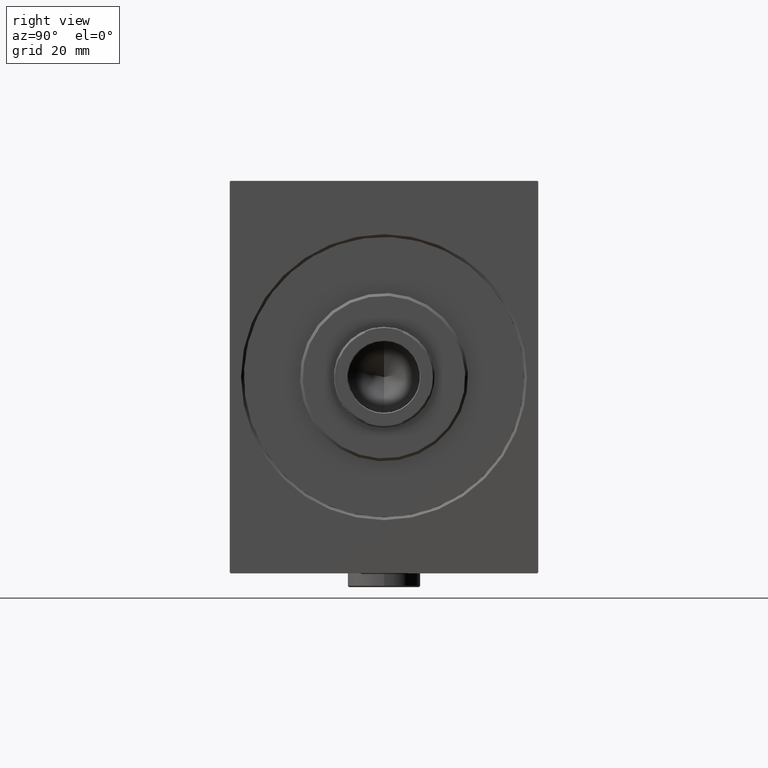
[diagram: clean part render]
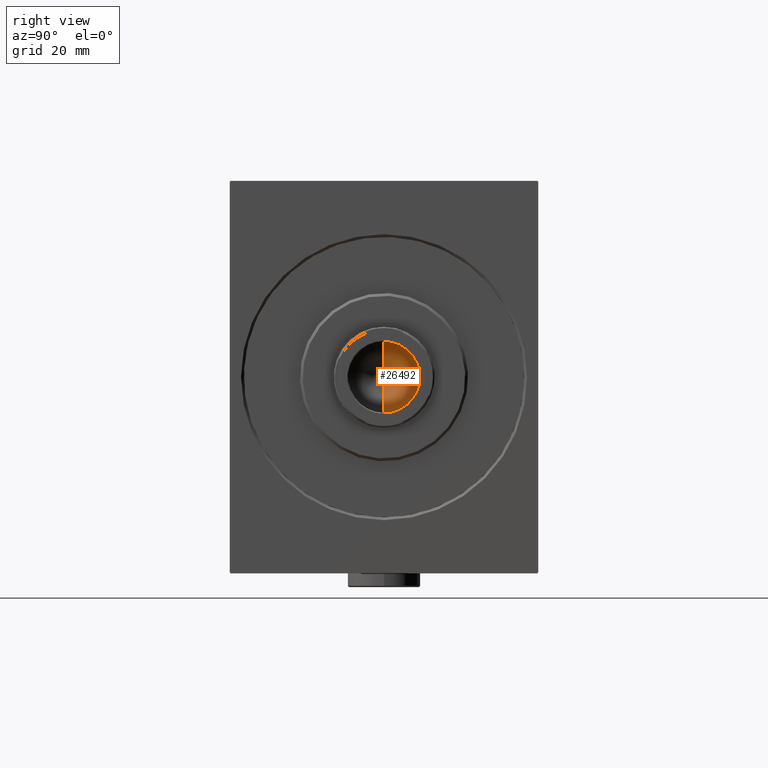
[diagram: same view with one face highlighted and labeled with its STEP entity id]
A machine part, right view. The second image highlights one B-rep face of the part: STEP entity #26492.
In plain terms, the highlighted conical surface has half-angle 59 deg.
Its self-contained STEP definition (entity closure, byte-faithful):
#934 = VERTEX_POINT ( 'NONE', #34615 ) ;
#1056 = VERTEX_POINT ( 'NONE', #21323 ) ;
#1144 = CONICAL_SURFACE ( 'NONE', #7580, 12.74999999999999112, 1.029744258676653645 ) ;
#2474 = DIRECTION ( 'NONE',  ( 0.8571673007021118895, 0.000000000000000000, 0.5150380749100549327 ) ) ;
#2558 = EDGE_CURVE ( 'NONE', #934, #38697, #22457, .T. ) ;
#6828 = CARTESIAN_POINT ( 'NONE',  ( 0.000000000000000000, 0.000000000000000000, 134.0000000000000000 ) ) ;
#7580 = AXIS2_PLACEMENT_3D ( 'NONE', #6828, #23458, #27251 ) ;
#8879 = CARTESIAN_POINT ( 'NONE',  ( -12.74999999999999112, 1.561424668912874125E-15, 134.0000000000000000 ) ) ;
#9650 = LINE ( 'NONE', #20417, #29690 ) ;
#10416 = EDGE_CURVE ( 'NONE', #1056, #934, #9650, .T. ) ;
#12150 = CARTESIAN_POINT ( 'NONE',  ( -12.74999999999999112, 1.561424668912874125E-15, 134.0000000000000000 ) ) ;
#17788 = ORIENTED_EDGE ( 'NONE', *, *, #39845, .F. ) ;
#19330 = VECTOR ( 'NONE', #26516, 1000.000000000000000 ) ;
#20417 = CARTESIAN_POINT ( 'NONE',  ( 12.74999999999999112, 0.000000000000000000, 134.0000000000000000 ) ) ;
#21323 = CARTESIAN_POINT ( 'NONE',  ( -1.116069142310992010E-14, 0.000000000000000000, 126.3390271073986071 ) ) ;
#22457 = CIRCLE ( 'NONE', #32476, 12.74999999999999112 ) ;
#23230 = FACE_OUTER_BOUND ( 'NONE', #41307, .T. ) ;
#23458 = DIRECTION ( 'NONE',  ( -0.000000000000000000, -0.000000000000000000, 1.000000000000000000 ) ) ;
#24757 = DIRECTION ( 'NONE',  ( 1.000000000000000000, 0.000000000000000000, 0.000000000000000000 ) ) ;
#24770 = ORIENTED_EDGE ( 'NONE', *, *, #2558, .T. ) ;
#25619 = LINE ( 'NONE', #12150, #19330 ) ;
#26492 = ADVANCED_FACE ( 'NONE', ( #23230 ), #1144, .F. ) ;
#26516 = DIRECTION ( 'NONE',  ( -0.8571673007021118895, 1.049727191138618079E-16, 0.5150380749100549327 ) ) ;
#27251 = DIRECTION ( 'NONE',  ( 1.000000000000000000, 0.000000000000000000, 0.000000000000000000 ) ) ;
#29690 = VECTOR ( 'NONE', #2474, 1000.000000000000000 ) ;
#30380 = ORIENTED_EDGE ( 'NONE', *, *, #10416, .T. ) ;
#32476 = AXIS2_PLACEMENT_3D ( 'NONE', #34633, #34417, #24757 ) ;
#34417 = DIRECTION ( 'NONE',  ( -0.000000000000000000, -0.000000000000000000, 1.000000000000000000 ) ) ;
#34615 = CARTESIAN_POINT ( 'NONE',  ( 12.74999999999999112, 0.000000000000000000, 134.0000000000000000 ) ) ;
#34633 = CARTESIAN_POINT ( 'NONE',  ( 0.000000000000000000, 0.000000000000000000, 134.0000000000000000 ) ) ;
#38697 = VERTEX_POINT ( 'NONE', #8879 ) ;
#39845 = EDGE_CURVE ( 'NONE', #1056, #38697, #25619, .T. ) ;
#41307 = EDGE_LOOP ( 'NONE', ( #17788, #30380, #24770 ) ) ;